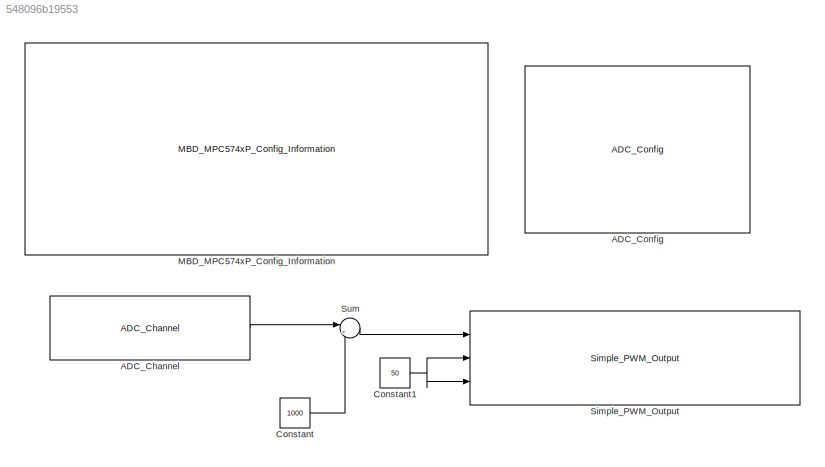
MODEL slx_548096b19553
KIND model
CONFIG AbsTol = auto
CONFIG EnableMultiTasking = off
CONFIG FixedStep = auto
CONFIG InitFcn = mbd_pnt_consistency_checks(bdroot(gcs));
CONFIG MaxStep = auto
CONFIG MinStep = auto
CONFIG RelTol = 1e-3
CONFIG SampleTimeConstraint = Unconstrained
CONFIG Solver = FixedStepDiscrete
CONFIG SolverName = FixedStepDiscrete
CONFIG StartTime = 0.0
CONFIG StopTime = 10.0
BLOCK [Reference] ADC_Channel  REF=mbd_pnt_ec_toolbox/MPC574xP/Motor Control Blocks/ADC_Channel
  Ports = [0, 1]
  SourceBlock = mbd_pnt_ec_toolbox/MPC574xP/Motor Control Blocks/ADC_Channel
  SourceProductName = Model Based Design Toolbox for MPC574xP
  SourceType = adc_pnt_channel_block
BLOCK [Reference] ADC_Config  REF=mbd_pnt_ec_toolbox/MPC574xP/Motor Control Blocks/ADC_Config
  Ports = []
  SourceBlock = mbd_pnt_ec_toolbox/MPC574xP/Motor Control Blocks/ADC_Config
  SourceProductName = Model Based Design Toolbox for MPC574xP
  SourceType = adc_pnt_config_block
BLOCK [Constant] Constant
  OutDataTypeStr = uint32
  Value = 1000
BLOCK [Constant] Constant1
  OutDataTypeStr = uint32
  Value = 50
BLOCK [Reference] MBD_MPC574xP_Config_Information  REF=mbd_pnt_ec_toolbox/MPC574xP/MBD_MPC574xP_Config_Information
  Ports = []
  SourceBlock = mbd_pnt_ec_toolbox/MPC574xP/MBD_MPC574xP_Config_Information
  SourceProductName = Model Based Design Toolbox for MPC574xP
  SourceType = MBDTBX_EC_PNT
BLOCK [Reference] Simple_PWM_Output  REF=mbd_pnt_ec_toolbox/MPC574xP/Motor Control Blocks/Simple_PWM_Output
  Ports = [3]
  SourceBlock = mbd_pnt_ec_toolbox/MPC574xP/Motor Control Blocks/Simple_PWM_Output
  SourceProductName = Model Based Design Toolbox for MPC574xP
  SourceType = Simple_PWM_pnt_output
BLOCK [Sum] Sum
  IconShape = round
  InputSameDT = off
  Inputs = |++
  OutDataTypeStr = Inherit: Inherit via internal rule
  Ports = [2, 1]
  SaturateOnIntegerOverflow = off
LINE ADC_Channel:1 -> Sum:1
NET Constant1:1 -> Simple_PWM_Output:2, Simple_PWM_Output:3
LINE Constant:1 -> Sum:2
LINE Sum:1 -> Simple_PWM_Output:1
note: NET lines group one-source signal fan-out (src -> all destinations, sorted); 1:1 wires keep LINE
